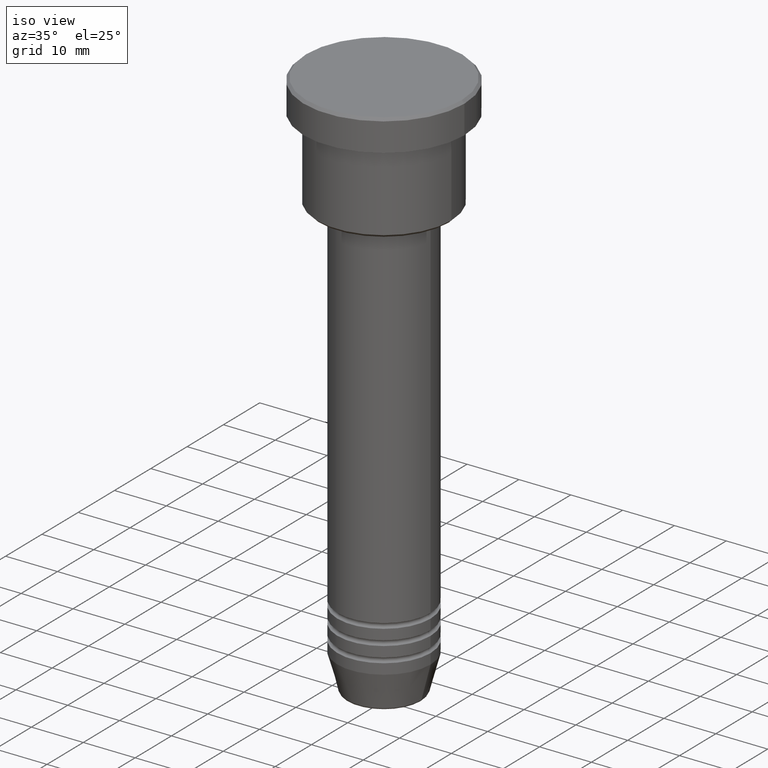
[diagram: clean part render]
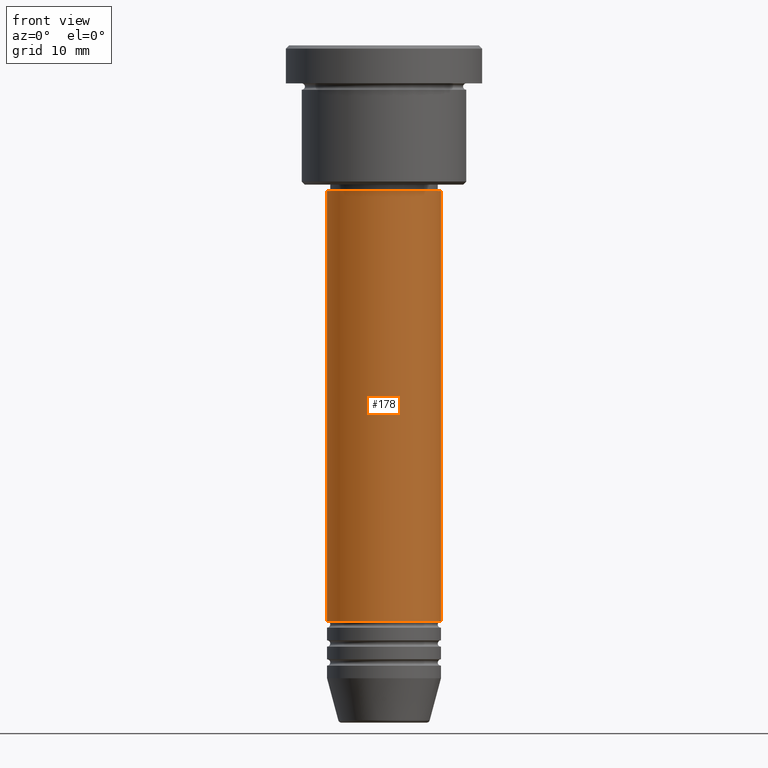
[diagram: tour spotlight — one face highlighted and labeled with its STEP entity id]
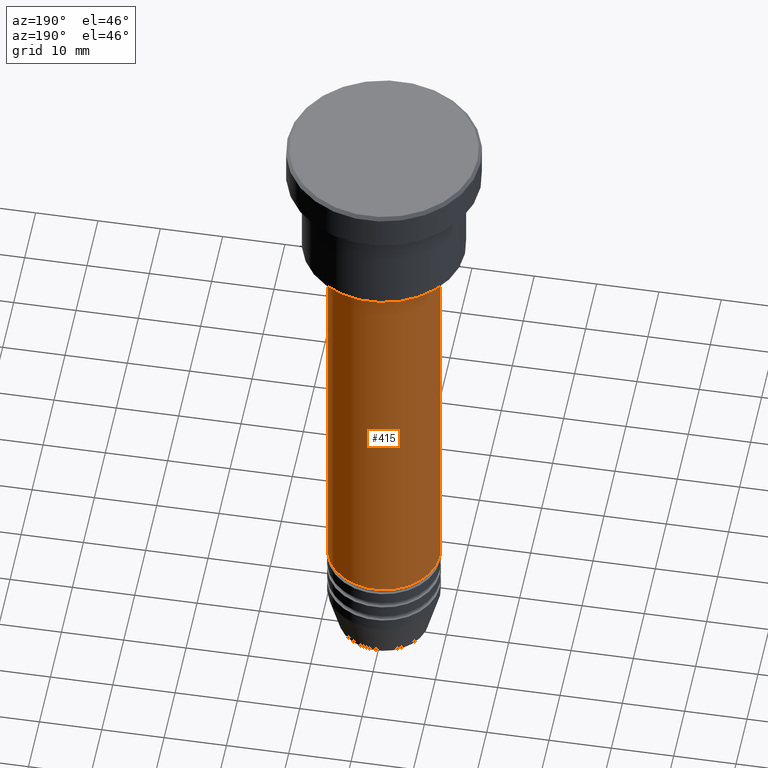
[diagram: tour spotlight — one face highlighted and labeled with its STEP entity id]
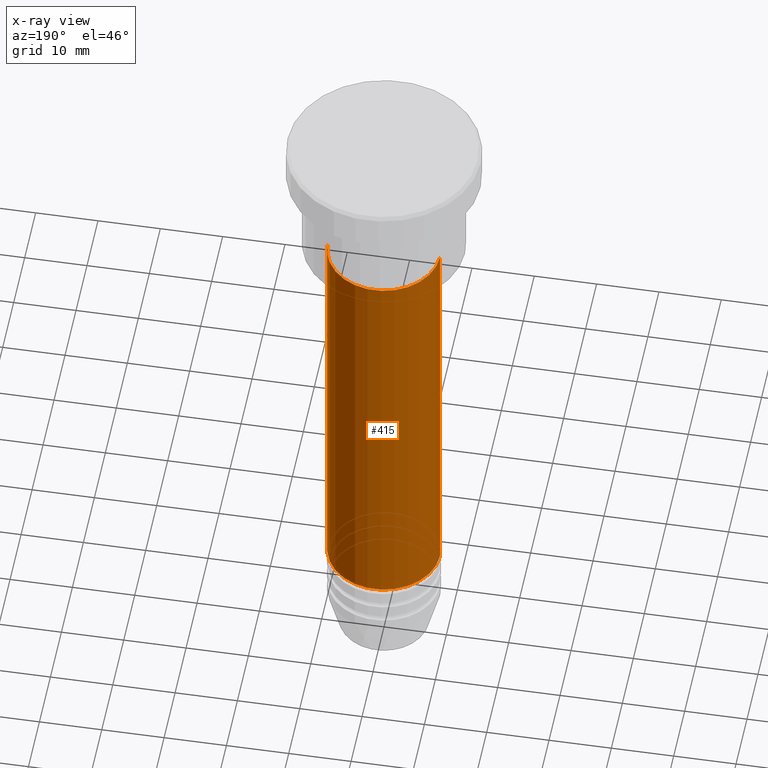
[diagram: x-ray of the same camera — body ghosted, this tour face saturated]
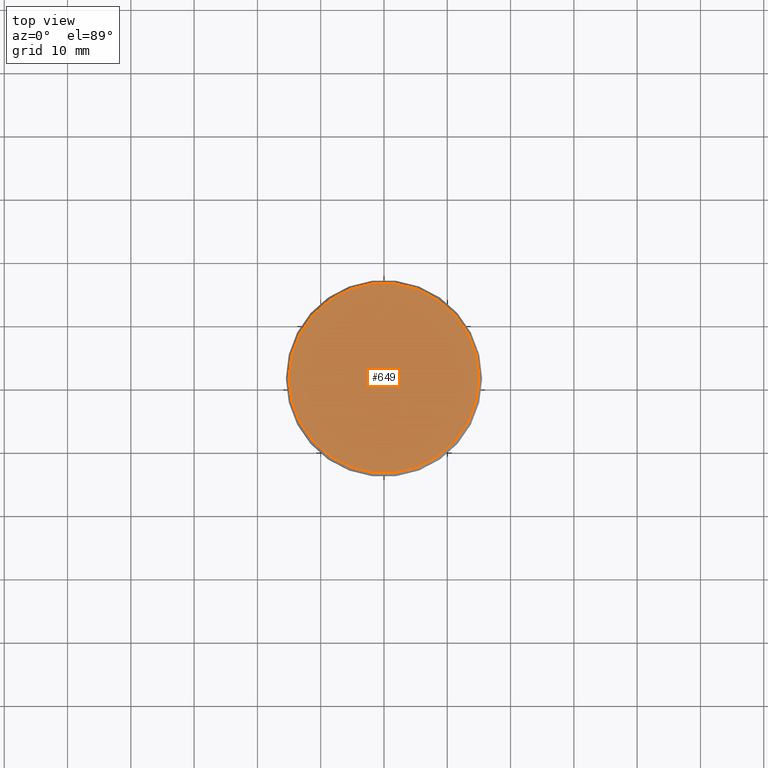
[diagram: tour spotlight — one face highlighted and labeled with its STEP entity id]
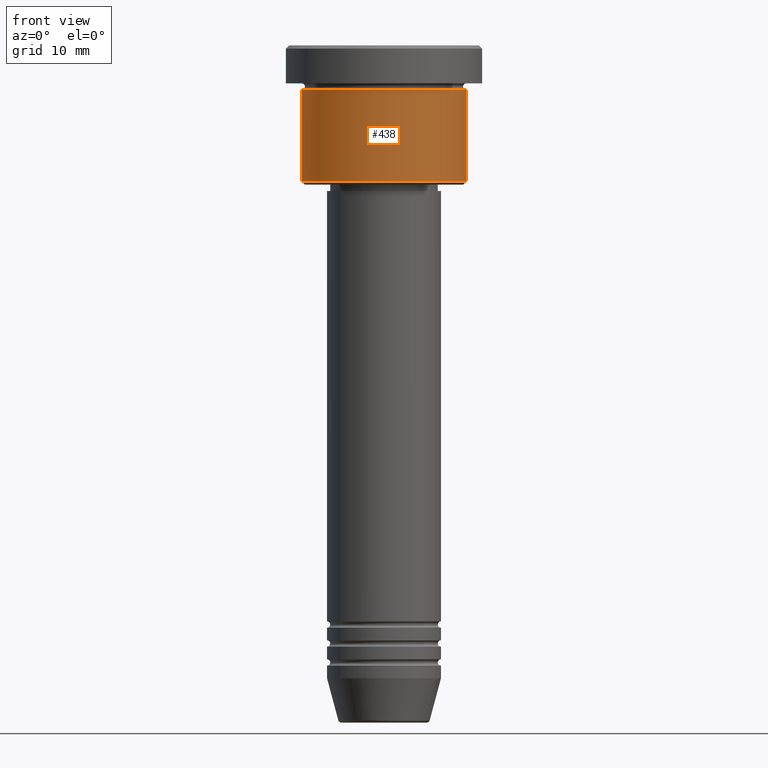
[diagram: tour spotlight — one face highlighted and labeled with its STEP entity id]
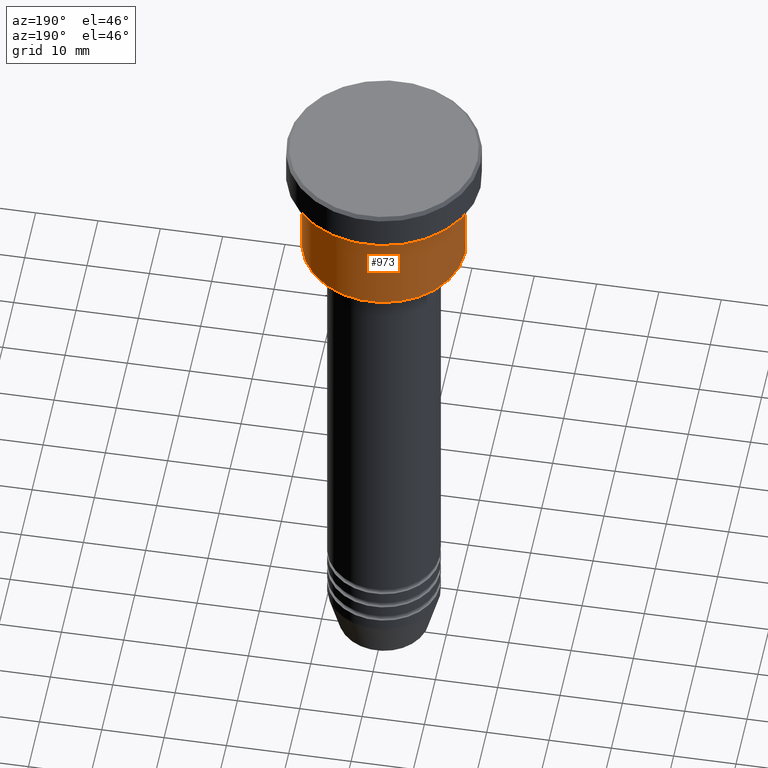
[diagram: tour spotlight — one face highlighted and labeled with its STEP entity id]
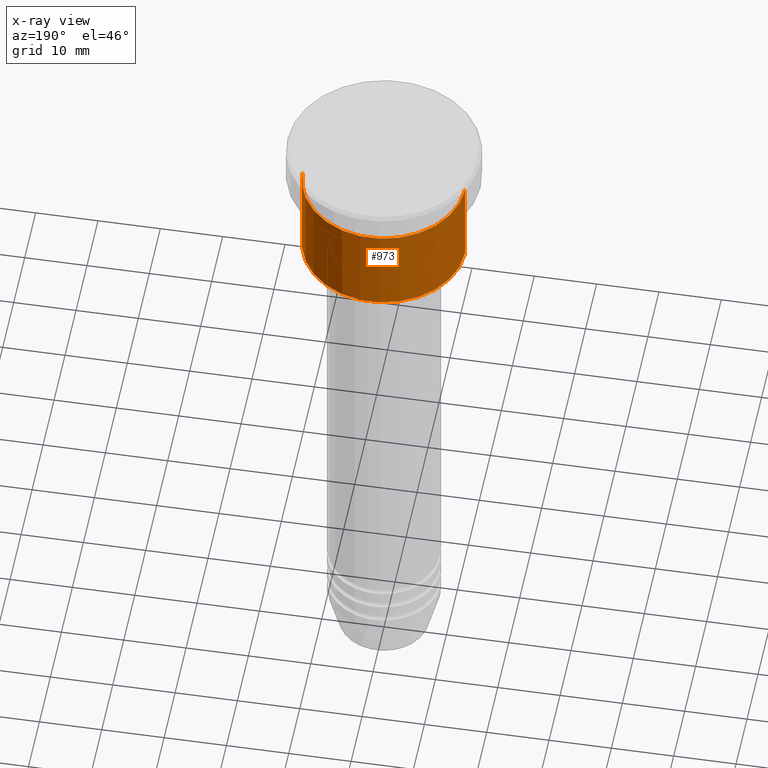
[diagram: x-ray of the same camera — body ghosted, this tour face saturated]
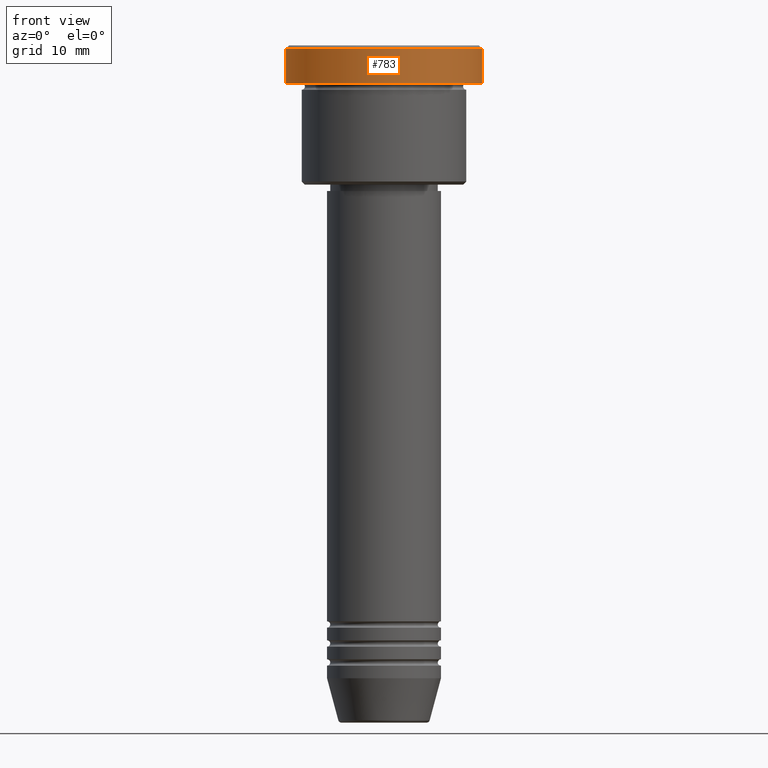
[diagram: tour spotlight — one face highlighted and labeled with its STEP entity id]
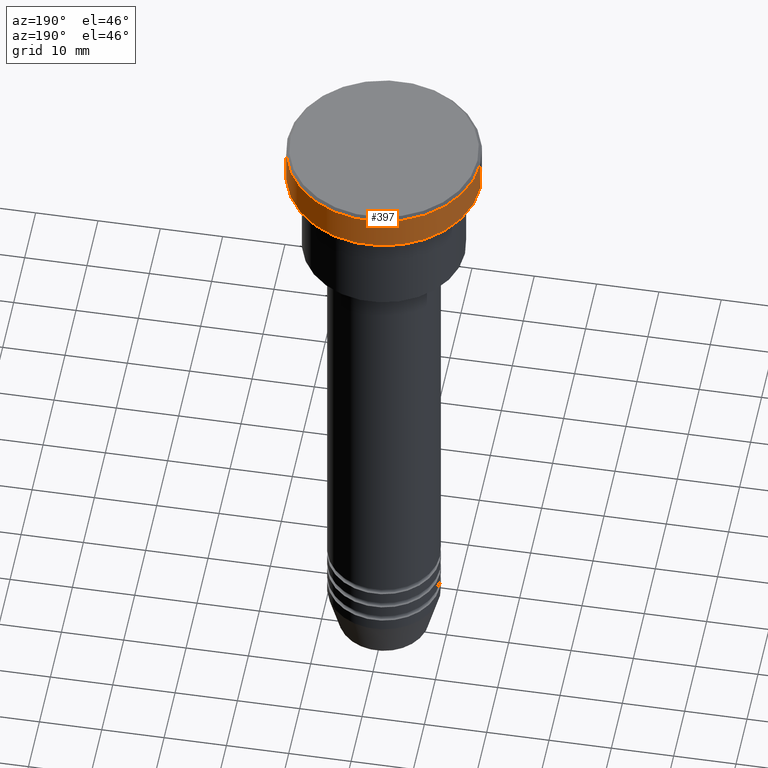
[diagram: tour spotlight — one face highlighted and labeled with its STEP entity id]
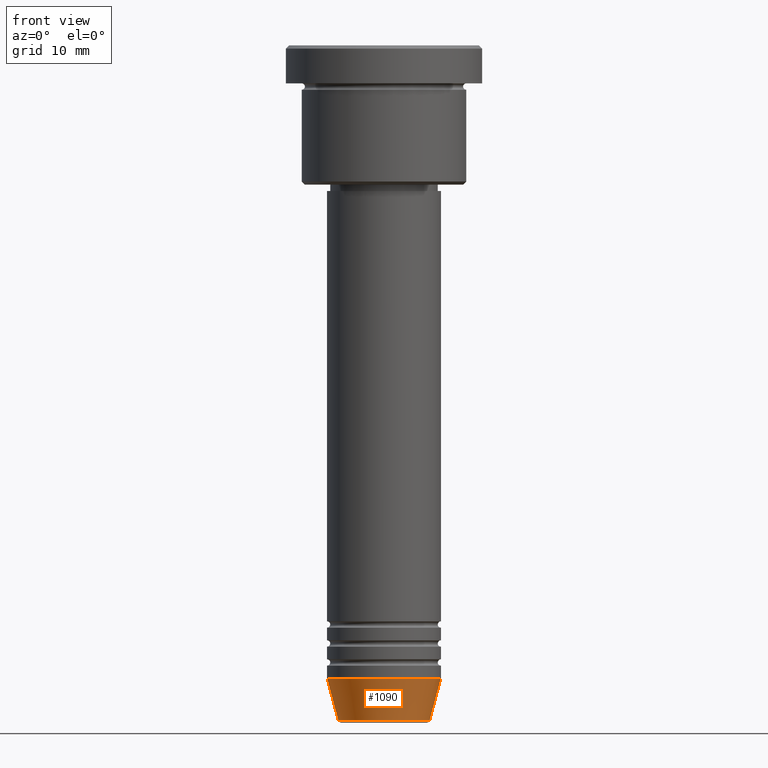
[diagram: tour spotlight — one face highlighted and labeled with its STEP entity id]
A machine part: a face-by-face anatomy tour. The part has 43 B-rep faces; the first image is the clean iso view, then the 8 largest visible faces are spotlighted one at a time (largest first), each with its STEP entity span.

Face 1 — front view, entity #178. In plain terms, the highlighted cylindrical surface (partial cylindrical patch) has radius 9 mm, axis along (-0, -0, 1).
Definition (entity closure, byte-faithful):
#13 = CARTESIAN_POINT ( 'NONE',  ( 9.000000000000000000, 0.000000000000000000, -23.00000000000000000 ) ) ;
#126 = DIRECTION ( 'NONE',  ( 1.000000000000000000, 0.000000000000000000, 0.000000000000000000 ) ) ;
#128 = AXIS2_PLACEMENT_3D ( 'NONE', #413, #953, #883 ) ;
#178 = ADVANCED_FACE ( 'NONE', ( #327 ), #465, .T. ) ;
#216 = VERTEX_POINT ( 'NONE', #13 ) ;
#220 = DIRECTION ( 'NONE',  ( -0.000000000000000000, -0.000000000000000000, 1.000000000000000000 ) ) ;
#242 = EDGE_CURVE ( 'NONE', #1002, #216, #709, .T. ) ;
#258 = VECTOR ( 'NONE', #815, 1000.000000000000000 ) ;
#279 = AXIS2_PLACEMENT_3D ( 'NONE', #1007, #639, #477 ) ;
#323 = CARTESIAN_POINT ( 'NONE',  ( -9.000000000000000000, 1.102182119232617714E-15, -23.00000000000000000 ) ) ;
#327 = FACE_OUTER_BOUND ( 'NONE', #344, .T. ) ;
#344 = EDGE_LOOP ( 'NONE', ( #1069, #535, #739, #663 ) ) ;
#346 = CARTESIAN_POINT ( 'NONE',  ( 9.000000000000000000, 0.000000000000000000, 0.000000000000000000 ) ) ;
#413 = CARTESIAN_POINT ( 'NONE',  ( 0.000000000000000000, 0.000000000000000000, -23.00000000000000000 ) ) ;
#431 = VERTEX_POINT ( 'NONE', #1130 ) ;
#440 = LINE ( 'NONE', #346, #258 ) ;
#456 = LINE ( 'NONE', #1127, #585 ) ;
#465 = CYLINDRICAL_SURFACE ( 'NONE', #279, 9.000000000000000000 ) ;
#477 = DIRECTION ( 'NONE',  ( 1.000000000000000000, 0.000000000000000000, 0.000000000000000000 ) ) ;
#478 = AXIS2_PLACEMENT_3D ( 'NONE', #1144, #220, #126 ) ;
#535 = ORIENTED_EDGE ( 'NONE', *, *, #1159, .T. ) ;
#565 = EDGE_CURVE ( 'NONE', #431, #216, #440, .T. ) ;
#585 = VECTOR ( 'NONE', #835, 1000.000000000000000 ) ;
#639 = DIRECTION ( 'NONE',  ( -0.000000000000000000, -0.000000000000000000, 1.000000000000000000 ) ) ;
#663 = ORIENTED_EDGE ( 'NONE', *, *, #242, .F. ) ;
#709 = CIRCLE ( 'NONE', #128, 9.000000000000000000 ) ;
#739 = ORIENTED_EDGE ( 'NONE', *, *, #565, .T. ) ;
#815 = DIRECTION ( 'NONE',  ( -0.000000000000000000, -0.000000000000000000, 1.000000000000000000 ) ) ;
#835 = DIRECTION ( 'NONE',  ( -0.000000000000000000, -0.000000000000000000, 1.000000000000000000 ) ) ;
#854 = EDGE_CURVE ( 'NONE', #1138, #1002, #456, .T. ) ;
#883 = DIRECTION ( 'NONE',  ( 1.000000000000000000, 0.000000000000000000, 0.000000000000000000 ) ) ;
#953 = DIRECTION ( 'NONE',  ( -0.000000000000000000, -0.000000000000000000, 1.000000000000000000 ) ) ;
#1002 = VERTEX_POINT ( 'NONE', #323 ) ;
#1007 = CARTESIAN_POINT ( 'NONE',  ( 0.000000000000000000, 0.000000000000000000, 0.000000000000000000 ) ) ;
#1037 = CIRCLE ( 'NONE', #478, 9.000000000000000000 ) ;
#1069 = ORIENTED_EDGE ( 'NONE', *, *, #854, .F. ) ;
#1120 = CARTESIAN_POINT ( 'NONE',  ( -9.000000000000000000, 1.102182119232617714E-15, -90.99999999999997158 ) ) ;
#1127 = CARTESIAN_POINT ( 'NONE',  ( -9.000000000000000000, 1.102182119232617714E-15, 0.000000000000000000 ) ) ;
#1130 = CARTESIAN_POINT ( 'NONE',  ( 9.000000000000000000, 0.000000000000000000, -90.99999999999997158 ) ) ;
#1138 = VERTEX_POINT ( 'NONE', #1120 ) ;
#1144 = CARTESIAN_POINT ( 'NONE',  ( 0.000000000000000000, 0.000000000000000000, -90.99999999999997158 ) ) ;
#1159 = EDGE_CURVE ( 'NONE', #1138, #431, #1037, .T. ) ;

Face 2 — auxiliary view, entity #415. An x-ray twin of the same camera follows (body ghosted, this face saturated) — the face is partly hidden behind the body. In plain terms, the highlighted cylindrical surface (partial cylindrical patch) has radius 9 mm, axis along (-0, -0, 1).
Definition (entity closure, byte-faithful):
#13 = CARTESIAN_POINT ( 'NONE',  ( 9.000000000000000000, 0.000000000000000000, -23.00000000000000000 ) ) ;
#41 = DIRECTION ( 'NONE',  ( 1.000000000000000000, 0.000000000000000000, 0.000000000000000000 ) ) ;
#64 = EDGE_CURVE ( 'NONE', #216, #1002, #493, .T. ) ;
#105 = CARTESIAN_POINT ( 'NONE',  ( 0.000000000000000000, 0.000000000000000000, 0.000000000000000000 ) ) ;
#134 = FACE_OUTER_BOUND ( 'NONE', #931, .T. ) ;
#155 = EDGE_CURVE ( 'NONE', #431, #1138, #165, .T. ) ;
#165 = CIRCLE ( 'NONE', #1113, 9.000000000000000000 ) ;
#216 = VERTEX_POINT ( 'NONE', #13 ) ;
#233 = DIRECTION ( 'NONE',  ( -0.000000000000000000, -0.000000000000000000, 1.000000000000000000 ) ) ;
#257 = ORIENTED_EDGE ( 'NONE', *, *, #155, .T. ) ;
#258 = VECTOR ( 'NONE', #815, 1000.000000000000000 ) ;
#318 = CARTESIAN_POINT ( 'NONE',  ( 0.000000000000000000, 0.000000000000000000, -23.00000000000000000 ) ) ;
#323 = CARTESIAN_POINT ( 'NONE',  ( -9.000000000000000000, 1.102182119232617714E-15, -23.00000000000000000 ) ) ;
#346 = CARTESIAN_POINT ( 'NONE',  ( 9.000000000000000000, 0.000000000000000000, 0.000000000000000000 ) ) ;
#378 = CYLINDRICAL_SURFACE ( 'NONE', #1055, 9.000000000000000000 ) ;
#415 = ADVANCED_FACE ( 'NONE', ( #134 ), #378, .T. ) ;
#421 = DIRECTION ( 'NONE',  ( -0.000000000000000000, -0.000000000000000000, 1.000000000000000000 ) ) ;
#431 = VERTEX_POINT ( 'NONE', #1130 ) ;
#440 = LINE ( 'NONE', #346, #258 ) ;
#456 = LINE ( 'NONE', #1127, #585 ) ;
#493 = CIRCLE ( 'NONE', #939, 9.000000000000000000 ) ;
#565 = EDGE_CURVE ( 'NONE', #431, #216, #440, .T. ) ;
#581 = DIRECTION ( 'NONE',  ( 1.000000000000000000, 0.000000000000000000, 0.000000000000000000 ) ) ;
#585 = VECTOR ( 'NONE', #835, 1000.000000000000000 ) ;
#595 = CARTESIAN_POINT ( 'NONE',  ( 0.000000000000000000, 0.000000000000000000, -90.99999999999997158 ) ) ;
#701 = ORIENTED_EDGE ( 'NONE', *, *, #64, .F. ) ;
#787 = ORIENTED_EDGE ( 'NONE', *, *, #565, .F. ) ;
#815 = DIRECTION ( 'NONE',  ( -0.000000000000000000, -0.000000000000000000, 1.000000000000000000 ) ) ;
#835 = DIRECTION ( 'NONE',  ( -0.000000000000000000, -0.000000000000000000, 1.000000000000000000 ) ) ;
#854 = EDGE_CURVE ( 'NONE', #1138, #1002, #456, .T. ) ;
#859 = DIRECTION ( 'NONE',  ( 1.000000000000000000, 0.000000000000000000, 0.000000000000000000 ) ) ;
#931 = EDGE_LOOP ( 'NONE', ( #257, #1050, #701, #787 ) ) ;
#939 = AXIS2_PLACEMENT_3D ( 'NONE', #318, #421, #859 ) ;
#1002 = VERTEX_POINT ( 'NONE', #323 ) ;
#1030 = DIRECTION ( 'NONE',  ( -0.000000000000000000, -0.000000000000000000, 1.000000000000000000 ) ) ;
#1050 = ORIENTED_EDGE ( 'NONE', *, *, #854, .T. ) ;
#1055 = AXIS2_PLACEMENT_3D ( 'NONE', #105, #1030, #581 ) ;
#1113 = AXIS2_PLACEMENT_3D ( 'NONE', #595, #233, #41 ) ;
#1120 = CARTESIAN_POINT ( 'NONE',  ( -9.000000000000000000, 1.102182119232617714E-15, -90.99999999999997158 ) ) ;
#1127 = CARTESIAN_POINT ( 'NONE',  ( -9.000000000000000000, 1.102182119232617714E-15, 0.000000000000000000 ) ) ;
#1130 = CARTESIAN_POINT ( 'NONE',  ( 9.000000000000000000, 0.000000000000000000, -90.99999999999997158 ) ) ;
#1138 = VERTEX_POINT ( 'NONE', #1120 ) ;

Face 3 — top view, entity #649. In plain terms, the highlighted planar face has unit normal (0, -0, 1).
Definition (entity closure, byte-faithful):
#1 = DIRECTION ( 'NONE',  ( 1.000000000000000000, 0.000000000000000000, 0.000000000000000000 ) ) ;
#9 = DIRECTION ( 'NONE',  ( 0.000000000000000000, -0.000000000000000000, 1.000000000000000000 ) ) ;
#98 = PLANE ( 'NONE',  #534 ) ;
#185 = DIRECTION ( 'NONE',  ( -0.000000000000000000, -0.000000000000000000, 1.000000000000000000 ) ) ;
#200 = DIRECTION ( 'NONE',  ( 1.000000000000000000, 0.000000000000000000, 0.000000000000000000 ) ) ;
#230 = VERTEX_POINT ( 'NONE', #312 ) ;
#253 = CARTESIAN_POINT ( 'NONE',  ( 0.000000000000000000, 0.000000000000000000, 0.000000000000000000 ) ) ;
#285 = CIRCLE ( 'NONE', #1041, 15.00000000000002665 ) ;
#289 = CARTESIAN_POINT ( 'NONE',  ( -15.00000000000002665, 0.000000000000000000, 0.000000000000000000 ) ) ;
#312 = CARTESIAN_POINT ( 'NONE',  ( 15.00000000000002665, 1.867586368699715348E-15, 0.000000000000000000 ) ) ;
#353 = AXIS2_PLACEMENT_3D ( 'NONE', #373, #738, #200 ) ;
#361 = ORIENTED_EDGE ( 'NONE', *, *, #689, .T. ) ;
#373 = CARTESIAN_POINT ( 'NONE',  ( 0.000000000000000000, 0.000000000000000000, 0.000000000000000000 ) ) ;
#534 = AXIS2_PLACEMENT_3D ( 'NONE', #253, #9, #1011 ) ;
#649 = ADVANCED_FACE ( 'NONE', ( #703 ), #98, .T. ) ;
#654 = EDGE_CURVE ( 'NONE', #658, #230, #678, .T. ) ;
#658 = VERTEX_POINT ( 'NONE', #289 ) ;
#678 = CIRCLE ( 'NONE', #353, 15.00000000000002665 ) ;
#689 = EDGE_CURVE ( 'NONE', #230, #658, #285, .T. ) ;
#703 = FACE_OUTER_BOUND ( 'NONE', #985, .T. ) ;
#738 = DIRECTION ( 'NONE',  ( -0.000000000000000000, -0.000000000000000000, 1.000000000000000000 ) ) ;
#897 = ORIENTED_EDGE ( 'NONE', *, *, #654, .T. ) ;
#985 = EDGE_LOOP ( 'NONE', ( #897, #361 ) ) ;
#1011 = DIRECTION ( 'NONE',  ( 1.000000000000000000, 0.000000000000000000, 0.000000000000000000 ) ) ;
#1041 = AXIS2_PLACEMENT_3D ( 'NONE', #1166, #185, #1 ) ;
#1166 = CARTESIAN_POINT ( 'NONE',  ( 0.000000000000000000, 0.000000000000000000, 0.000000000000000000 ) ) ;

Face 4 — front view, entity #438. In plain terms, the highlighted cylindrical surface (partial cylindrical patch) has radius 13 mm, axis along (-0, -0, 1).
Definition (entity closure, byte-faithful):
#56 = CYLINDRICAL_SURFACE ( 'NONE', #1155, 13.00000000000000000 ) ;
#63 = DIRECTION ( 'NONE',  ( -0.000000000000000000, -0.000000000000000000, 1.000000000000000000 ) ) ;
#65 = CARTESIAN_POINT ( 'NONE',  ( -13.00000000000000000, 1.592040838891559095E-15, 0.000000000000000000 ) ) ;
#78 = EDGE_LOOP ( 'NONE', ( #351, #879, #638, #166 ) ) ;
#102 = EDGE_CURVE ( 'NONE', #454, #377, #1146, .T. ) ;
#146 = DIRECTION ( 'NONE',  ( 1.000000000000000000, 0.000000000000000000, 0.000000000000000000 ) ) ;
#166 = ORIENTED_EDGE ( 'NONE', *, *, #710, .F. ) ;
#259 = AXIS2_PLACEMENT_3D ( 'NONE', #1172, #354, #270 ) ;
#270 = DIRECTION ( 'NONE',  ( 1.000000000000000000, 0.000000000000000000, 0.000000000000000000 ) ) ;
#339 = VERTEX_POINT ( 'NONE', #807 ) ;
#351 = ORIENTED_EDGE ( 'NONE', *, *, #102, .F. ) ;
#354 = DIRECTION ( 'NONE',  ( -0.000000000000000000, -0.000000000000000000, 1.000000000000000000 ) ) ;
#377 = VERTEX_POINT ( 'NONE', #727 ) ;
#401 = CARTESIAN_POINT ( 'NONE',  ( 13.00000000000000000, 0.000000000000000000, 0.000000000000000000 ) ) ;
#412 = CARTESIAN_POINT ( 'NONE',  ( 0.000000000000000000, 0.000000000000000000, 0.000000000000000000 ) ) ;
#420 = LINE ( 'NONE', #401, #1042 ) ;
#438 = ADVANCED_FACE ( 'NONE', ( #861 ), #56, .T. ) ;
#454 = VERTEX_POINT ( 'NONE', #1148 ) ;
#545 = EDGE_CURVE ( 'NONE', #454, #339, #886, .T. ) ;
#549 = AXIS2_PLACEMENT_3D ( 'NONE', #700, #63, #966 ) ;
#638 = ORIENTED_EDGE ( 'NONE', *, *, #1036, .T. ) ;
#700 = CARTESIAN_POINT ( 'NONE',  ( 0.000000000000000000, 0.000000000000000000, -21.49999999999998934 ) ) ;
#710 = EDGE_CURVE ( 'NONE', #377, #725, #1115, .T. ) ;
#725 = VERTEX_POINT ( 'NONE', #751 ) ;
#727 = CARTESIAN_POINT ( 'NONE',  ( -13.00000000000000000, 1.592040838891559095E-15, -6.999999999999995559 ) ) ;
#751 = CARTESIAN_POINT ( 'NONE',  ( 13.00000000000000000, 0.000000000000000000, -6.999999999999995559 ) ) ;
#756 = DIRECTION ( 'NONE',  ( -0.000000000000000000, -0.000000000000000000, 1.000000000000000000 ) ) ;
#773 = DIRECTION ( 'NONE',  ( -0.000000000000000000, -0.000000000000000000, 1.000000000000000000 ) ) ;
#782 = DIRECTION ( 'NONE',  ( -0.000000000000000000, -0.000000000000000000, 1.000000000000000000 ) ) ;
#807 = CARTESIAN_POINT ( 'NONE',  ( 13.00000000000000000, 0.000000000000000000, -21.49999999999998934 ) ) ;
#861 = FACE_OUTER_BOUND ( 'NONE', #78, .T. ) ;
#879 = ORIENTED_EDGE ( 'NONE', *, *, #545, .T. ) ;
#886 = CIRCLE ( 'NONE', #549, 13.00000000000000000 ) ;
#966 = DIRECTION ( 'NONE',  ( -1.000000000000000000, 0.000000000000000000, 0.000000000000000000 ) ) ;
#1036 = EDGE_CURVE ( 'NONE', #339, #725, #420, .T. ) ;
#1042 = VECTOR ( 'NONE', #782, 1000.000000000000000 ) ;
#1071 = VECTOR ( 'NONE', #756, 1000.000000000000000 ) ;
#1115 = CIRCLE ( 'NONE', #259, 13.00000000000000000 ) ;
#1146 = LINE ( 'NONE', #65, #1071 ) ;
#1148 = CARTESIAN_POINT ( 'NONE',  ( -13.00000000000000000, 1.592040838891559095E-15, -21.49999999999998934 ) ) ;
#1155 = AXIS2_PLACEMENT_3D ( 'NONE', #412, #773, #146 ) ;
#1172 = CARTESIAN_POINT ( 'NONE',  ( 0.000000000000000000, 0.000000000000000000, -6.999999999999995559 ) ) ;

Face 5 — auxiliary view, entity #973. An x-ray twin of the same camera follows (body ghosted, this face saturated) — the face is partly hidden behind the body. In plain terms, the highlighted cylindrical surface (partial cylindrical patch) has radius 13 mm, axis along (-0, -0, 1).
Definition (entity closure, byte-faithful):
#65 = CARTESIAN_POINT ( 'NONE',  ( -13.00000000000000000, 1.592040838891559095E-15, 0.000000000000000000 ) ) ;
#82 = EDGE_LOOP ( 'NONE', ( #247, #707, #310, #204 ) ) ;
#102 = EDGE_CURVE ( 'NONE', #454, #377, #1146, .T. ) ;
#204 = ORIENTED_EDGE ( 'NONE', *, *, #1036, .F. ) ;
#247 = ORIENTED_EDGE ( 'NONE', *, *, #303, .T. ) ;
#260 = CARTESIAN_POINT ( 'NONE',  ( 0.000000000000000000, 0.000000000000000000, -21.49999999999998934 ) ) ;
#263 = AXIS2_PLACEMENT_3D ( 'NONE', #1128, #956, #409 ) ;
#303 = EDGE_CURVE ( 'NONE', #339, #454, #1093, .T. ) ;
#310 = ORIENTED_EDGE ( 'NONE', *, *, #1182, .F. ) ;
#339 = VERTEX_POINT ( 'NONE', #807 ) ;
#377 = VERTEX_POINT ( 'NONE', #727 ) ;
#381 = DIRECTION ( 'NONE',  ( -0.000000000000000000, -0.000000000000000000, 1.000000000000000000 ) ) ;
#401 = CARTESIAN_POINT ( 'NONE',  ( 13.00000000000000000, 0.000000000000000000, 0.000000000000000000 ) ) ;
#409 = DIRECTION ( 'NONE',  ( 1.000000000000000000, 0.000000000000000000, 0.000000000000000000 ) ) ;
#420 = LINE ( 'NONE', #401, #1042 ) ;
#452 = DIRECTION ( 'NONE',  ( -0.000000000000000000, -0.000000000000000000, 1.000000000000000000 ) ) ;
#454 = VERTEX_POINT ( 'NONE', #1148 ) ;
#509 = CIRCLE ( 'NONE', #770, 13.00000000000000000 ) ;
#537 = CYLINDRICAL_SURFACE ( 'NONE', #263, 13.00000000000000000 ) ;
#573 = DIRECTION ( 'NONE',  ( 1.000000000000000000, 0.000000000000000000, 0.000000000000000000 ) ) ;
#626 = DIRECTION ( 'NONE',  ( -1.000000000000000000, 0.000000000000000000, 0.000000000000000000 ) ) ;
#692 = AXIS2_PLACEMENT_3D ( 'NONE', #260, #452, #626 ) ;
#707 = ORIENTED_EDGE ( 'NONE', *, *, #102, .T. ) ;
#725 = VERTEX_POINT ( 'NONE', #751 ) ;
#727 = CARTESIAN_POINT ( 'NONE',  ( -13.00000000000000000, 1.592040838891559095E-15, -6.999999999999995559 ) ) ;
#751 = CARTESIAN_POINT ( 'NONE',  ( 13.00000000000000000, 0.000000000000000000, -6.999999999999995559 ) ) ;
#756 = DIRECTION ( 'NONE',  ( -0.000000000000000000, -0.000000000000000000, 1.000000000000000000 ) ) ;
#770 = AXIS2_PLACEMENT_3D ( 'NONE', #929, #381, #573 ) ;
#782 = DIRECTION ( 'NONE',  ( -0.000000000000000000, -0.000000000000000000, 1.000000000000000000 ) ) ;
#807 = CARTESIAN_POINT ( 'NONE',  ( 13.00000000000000000, 0.000000000000000000, -21.49999999999998934 ) ) ;
#929 = CARTESIAN_POINT ( 'NONE',  ( 0.000000000000000000, 0.000000000000000000, -6.999999999999995559 ) ) ;
#956 = DIRECTION ( 'NONE',  ( -0.000000000000000000, -0.000000000000000000, 1.000000000000000000 ) ) ;
#973 = ADVANCED_FACE ( 'NONE', ( #976 ), #537, .T. ) ;
#976 = FACE_OUTER_BOUND ( 'NONE', #82, .T. ) ;
#1036 = EDGE_CURVE ( 'NONE', #339, #725, #420, .T. ) ;
#1042 = VECTOR ( 'NONE', #782, 1000.000000000000000 ) ;
#1071 = VECTOR ( 'NONE', #756, 1000.000000000000000 ) ;
#1093 = CIRCLE ( 'NONE', #692, 13.00000000000000000 ) ;
#1128 = CARTESIAN_POINT ( 'NONE',  ( 0.000000000000000000, 0.000000000000000000, 0.000000000000000000 ) ) ;
#1146 = LINE ( 'NONE', #65, #1071 ) ;
#1148 = CARTESIAN_POINT ( 'NONE',  ( -13.00000000000000000, 1.592040838891559095E-15, -21.49999999999998934 ) ) ;
#1182 = EDGE_CURVE ( 'NONE', #725, #377, #509, .T. ) ;

Face 6 — front view, entity #783. In plain terms, the highlighted cylindrical surface (partial cylindrical patch) has radius 15.5 mm, axis along (-0, -0, 1).
Definition (entity closure, byte-faithful):
#21 = VERTEX_POINT ( 'NONE', #103 ) ;
#80 = CARTESIAN_POINT ( 'NONE',  ( -15.50000000000000000, 1.898202538678397557E-15, 0.000000000000000000 ) ) ;
#103 = CARTESIAN_POINT ( 'NONE',  ( -15.50000000000000000, 1.898202538678397557E-15, -5.999999999999995559 ) ) ;
#145 = CIRCLE ( 'NONE', #1058, 15.50000000000000000 ) ;
#157 = DIRECTION ( 'NONE',  ( 1.000000000000000000, 0.000000000000000000, 0.000000000000000000 ) ) ;
#184 = VECTOR ( 'NONE', #1079, 1000.000000000000000 ) ;
#194 = CARTESIAN_POINT ( 'NONE',  ( 0.000000000000000000, 0.000000000000000000, -0.4999999999999709677 ) ) ;
#197 = EDGE_CURVE ( 'NONE', #21, #840, #999, .T. ) ;
#198 = ORIENTED_EDGE ( 'NONE', *, *, #311, .F. ) ;
#292 = DIRECTION ( 'NONE',  ( 1.000000000000000000, 0.000000000000000000, 0.000000000000000000 ) ) ;
#311 = EDGE_CURVE ( 'NONE', #21, #648, #458, .T. ) ;
#340 = ORIENTED_EDGE ( 'NONE', *, *, #197, .T. ) ;
#358 = CARTESIAN_POINT ( 'NONE',  ( 15.50000000000000000, 0.000000000000000000, 0.000000000000000000 ) ) ;
#368 = DIRECTION ( 'NONE',  ( -0.000000000000000000, -0.000000000000000000, 1.000000000000000000 ) ) ;
#407 = AXIS2_PLACEMENT_3D ( 'NONE', #1103, #1081, #292 ) ;
#458 = LINE ( 'NONE', #80, #184 ) ;
#557 = DIRECTION ( 'NONE',  ( 0.000000000000000000, 0.000000000000000000, -1.000000000000000000 ) ) ;
#567 = AXIS2_PLACEMENT_3D ( 'NONE', #968, #368, #157 ) ;
#634 = DIRECTION ( 'NONE',  ( -0.000000000000000000, -0.000000000000000000, 1.000000000000000000 ) ) ;
#636 = EDGE_CURVE ( 'NONE', #715, #648, #145, .T. ) ;
#648 = VERTEX_POINT ( 'NONE', #913 ) ;
#715 = VERTEX_POINT ( 'NONE', #1027 ) ;
#720 = CYLINDRICAL_SURFACE ( 'NONE', #407, 15.50000000000000000 ) ;
#731 = CARTESIAN_POINT ( 'NONE',  ( 15.50000000000000000, 0.000000000000000000, -5.999999999999995559 ) ) ;
#783 = ADVANCED_FACE ( 'NONE', ( #1008 ), #720, .T. ) ;
#819 = EDGE_CURVE ( 'NONE', #840, #715, #1177, .T. ) ;
#840 = VERTEX_POINT ( 'NONE', #731 ) ;
#892 = DIRECTION ( 'NONE',  ( 1.000000000000000000, 0.000000000000000000, 0.000000000000000000 ) ) ;
#901 = ORIENTED_EDGE ( 'NONE', *, *, #636, .T. ) ;
#913 = CARTESIAN_POINT ( 'NONE',  ( -15.50000000000000000, 1.898202538678397557E-15, -0.4999999999999709677 ) ) ;
#961 = VECTOR ( 'NONE', #634, 1000.000000000000000 ) ;
#968 = CARTESIAN_POINT ( 'NONE',  ( 0.000000000000000000, 0.000000000000000000, -5.999999999999995559 ) ) ;
#999 = CIRCLE ( 'NONE', #567, 15.50000000000000000 ) ;
#1008 = FACE_OUTER_BOUND ( 'NONE', #1109, .T. ) ;
#1027 = CARTESIAN_POINT ( 'NONE',  ( 15.50000000000000000, 0.000000000000000000, -0.4999999999999709677 ) ) ;
#1058 = AXIS2_PLACEMENT_3D ( 'NONE', #194, #557, #892 ) ;
#1060 = ORIENTED_EDGE ( 'NONE', *, *, #819, .T. ) ;
#1079 = DIRECTION ( 'NONE',  ( -0.000000000000000000, -0.000000000000000000, 1.000000000000000000 ) ) ;
#1081 = DIRECTION ( 'NONE',  ( -0.000000000000000000, -0.000000000000000000, 1.000000000000000000 ) ) ;
#1103 = CARTESIAN_POINT ( 'NONE',  ( 0.000000000000000000, 0.000000000000000000, 0.000000000000000000 ) ) ;
#1109 = EDGE_LOOP ( 'NONE', ( #198, #340, #1060, #901 ) ) ;
#1177 = LINE ( 'NONE', #358, #961 ) ;

Face 7 — auxiliary view, entity #397. In plain terms, the highlighted cylindrical surface (partial cylindrical patch) has radius 15.5 mm, axis along (-0, -0, 1).
Definition (entity closure, byte-faithful):
#21 = VERTEX_POINT ( 'NONE', #103 ) ;
#79 = ORIENTED_EDGE ( 'NONE', *, *, #461, .T. ) ;
#80 = CARTESIAN_POINT ( 'NONE',  ( -15.50000000000000000, 1.898202538678397557E-15, 0.000000000000000000 ) ) ;
#103 = CARTESIAN_POINT ( 'NONE',  ( -15.50000000000000000, 1.898202538678397557E-15, -5.999999999999995559 ) ) ;
#124 = DIRECTION ( 'NONE',  ( -0.000000000000000000, -0.000000000000000000, 1.000000000000000000 ) ) ;
#184 = VECTOR ( 'NONE', #1079, 1000.000000000000000 ) ;
#301 = AXIS2_PLACEMENT_3D ( 'NONE', #393, #124, #304 ) ;
#304 = DIRECTION ( 'NONE',  ( 1.000000000000000000, 0.000000000000000000, 0.000000000000000000 ) ) ;
#311 = EDGE_CURVE ( 'NONE', #21, #648, #458, .T. ) ;
#333 = AXIS2_PLACEMENT_3D ( 'NONE', #1179, #538, #637 ) ;
#358 = CARTESIAN_POINT ( 'NONE',  ( 15.50000000000000000, 0.000000000000000000, 0.000000000000000000 ) ) ;
#393 = CARTESIAN_POINT ( 'NONE',  ( 0.000000000000000000, 0.000000000000000000, 0.000000000000000000 ) ) ;
#397 = ADVANCED_FACE ( 'NONE', ( #589 ), #749, .T. ) ;
#411 = ORIENTED_EDGE ( 'NONE', *, *, #311, .T. ) ;
#458 = LINE ( 'NONE', #80, #184 ) ;
#461 = EDGE_CURVE ( 'NONE', #648, #715, #1023, .T. ) ;
#538 = DIRECTION ( 'NONE',  ( -0.000000000000000000, -0.000000000000000000, 1.000000000000000000 ) ) ;
#589 = FACE_OUTER_BOUND ( 'NONE', #798, .T. ) ;
#615 = EDGE_CURVE ( 'NONE', #840, #21, #846, .T. ) ;
#634 = DIRECTION ( 'NONE',  ( -0.000000000000000000, -0.000000000000000000, 1.000000000000000000 ) ) ;
#637 = DIRECTION ( 'NONE',  ( 1.000000000000000000, 0.000000000000000000, 0.000000000000000000 ) ) ;
#648 = VERTEX_POINT ( 'NONE', #913 ) ;
#715 = VERTEX_POINT ( 'NONE', #1027 ) ;
#731 = CARTESIAN_POINT ( 'NONE',  ( 15.50000000000000000, 0.000000000000000000, -5.999999999999995559 ) ) ;
#749 = CYLINDRICAL_SURFACE ( 'NONE', #301, 15.50000000000000000 ) ;
#798 = EDGE_LOOP ( 'NONE', ( #1086, #411, #79, #891 ) ) ;
#819 = EDGE_CURVE ( 'NONE', #840, #715, #1177, .T. ) ;
#840 = VERTEX_POINT ( 'NONE', #731 ) ;
#846 = CIRCLE ( 'NONE', #333, 15.50000000000000000 ) ;
#891 = ORIENTED_EDGE ( 'NONE', *, *, #819, .F. ) ;
#913 = CARTESIAN_POINT ( 'NONE',  ( -15.50000000000000000, 1.898202538678397557E-15, -0.4999999999999709677 ) ) ;
#919 = CARTESIAN_POINT ( 'NONE',  ( 0.000000000000000000, 0.000000000000000000, -0.4999999999999709677 ) ) ;
#959 = AXIS2_PLACEMENT_3D ( 'NONE', #919, #1126, #1052 ) ;
#961 = VECTOR ( 'NONE', #634, 1000.000000000000000 ) ;
#1023 = CIRCLE ( 'NONE', #959, 15.50000000000000000 ) ;
#1027 = CARTESIAN_POINT ( 'NONE',  ( 15.50000000000000000, 0.000000000000000000, -0.4999999999999709677 ) ) ;
#1052 = DIRECTION ( 'NONE',  ( 1.000000000000000000, 0.000000000000000000, 0.000000000000000000 ) ) ;
#1079 = DIRECTION ( 'NONE',  ( -0.000000000000000000, -0.000000000000000000, 1.000000000000000000 ) ) ;
#1086 = ORIENTED_EDGE ( 'NONE', *, *, #615, .T. ) ;
#1126 = DIRECTION ( 'NONE',  ( 0.000000000000000000, 0.000000000000000000, -1.000000000000000000 ) ) ;
#1177 = LINE ( 'NONE', #358, #961 ) ;
#1179 = CARTESIAN_POINT ( 'NONE',  ( 0.000000000000000000, 0.000000000000000000, -5.999999999999995559 ) ) ;

Face 8 — front view, entity #1090. In plain terms, the highlighted conical surface has half-angle 15 deg.
Definition (entity closure, byte-faithful):
#23 = CARTESIAN_POINT ( 'NONE',  ( -9.000000000000000000, 1.102182119232617714E-15, -100.0000000000000000 ) ) ;
#37 = VERTEX_POINT ( 'NONE', #391 ) ;
#38 = DIRECTION ( 'NONE',  ( 1.000000000000000000, 0.000000000000000000, 0.000000000000000000 ) ) ;
#40 = EDGE_CURVE ( 'NONE', #624, #874, #1121, .T. ) ;
#72 = AXIS2_PLACEMENT_3D ( 'NONE', #894, #479, #745 ) ;
#90 = VECTOR ( 'NONE', #916, 1000.000000000000000 ) ;
#92 = CARTESIAN_POINT ( 'NONE',  ( 0.000000000000000000, 0.000000000000000000, -100.0000000000000000 ) ) ;
#196 = ORIENTED_EDGE ( 'NONE', *, *, #307, .F. ) ;
#199 = DIRECTION ( 'NONE',  ( -0.000000000000000000, -0.000000000000000000, 1.000000000000000000 ) ) ;
#284 = CARTESIAN_POINT ( 'NONE',  ( -7.223655072137198374, 9.934123627281771026E-16, -106.6294095225512422 ) ) ;
#307 = EDGE_CURVE ( 'NONE', #874, #37, #530, .T. ) ;
#315 = AXIS2_PLACEMENT_3D ( 'NONE', #92, #199, #371 ) ;
#316 = CIRCLE ( 'NONE', #903, 7.223655072137197486 ) ;
#371 = DIRECTION ( 'NONE',  ( 1.000000000000000000, 0.000000000000000000, 0.000000000000000000 ) ) ;
#391 = CARTESIAN_POINT ( 'NONE',  ( 9.000000000000000000, 0.000000000000000000, -100.0000000000000000 ) ) ;
#455 = EDGE_CURVE ( 'NONE', #624, #895, #316, .T. ) ;
#479 = DIRECTION ( 'NONE',  ( -0.000000000000000000, -0.000000000000000000, 1.000000000000000000 ) ) ;
#530 = CIRCLE ( 'NONE', #315, 9.000000000000000000 ) ;
#561 = CARTESIAN_POINT ( 'NONE',  ( 9.000000000000000000, 0.000000000000000000, -100.0000000000000000 ) ) ;
#577 = DIRECTION ( 'NONE',  ( -0.000000000000000000, -0.000000000000000000, 1.000000000000000000 ) ) ;
#621 = VECTOR ( 'NONE', #741, 1000.000000000000000 ) ;
#624 = VERTEX_POINT ( 'NONE', #284 ) ;
#650 = LINE ( 'NONE', #561, #90 ) ;
#665 = EDGE_CURVE ( 'NONE', #895, #37, #650, .T. ) ;
#741 = DIRECTION ( 'NONE',  ( -0.2588190451025213501, 3.169619151431772337E-17, 0.9659258262890680902 ) ) ;
#745 = DIRECTION ( 'NONE',  ( 1.000000000000000000, 0.000000000000000000, 0.000000000000000000 ) ) ;
#795 = EDGE_LOOP ( 'NONE', ( #1061, #1180, #813, #196 ) ) ;
#813 = ORIENTED_EDGE ( 'NONE', *, *, #665, .T. ) ;
#874 = VERTEX_POINT ( 'NONE', #876 ) ;
#876 = CARTESIAN_POINT ( 'NONE',  ( -9.000000000000000000, 1.102182119232617714E-15, -100.0000000000000000 ) ) ;
#894 = CARTESIAN_POINT ( 'NONE',  ( 0.000000000000000000, 0.000000000000000000, -100.0000000000000000 ) ) ;
#895 = VERTEX_POINT ( 'NONE', #1168 ) ;
#903 = AXIS2_PLACEMENT_3D ( 'NONE', #1015, #577, #38 ) ;
#916 = DIRECTION ( 'NONE',  ( 0.2588190451025213501, 0.000000000000000000, 0.9659258262890680902 ) ) ;
#972 = FACE_OUTER_BOUND ( 'NONE', #795, .T. ) ;
#1015 = CARTESIAN_POINT ( 'NONE',  ( 0.000000000000000000, 0.000000000000000000, -106.6294095225512422 ) ) ;
#1061 = ORIENTED_EDGE ( 'NONE', *, *, #40, .F. ) ;
#1090 = ADVANCED_FACE ( 'NONE', ( #972 ), #1134, .T. ) ;
#1121 = LINE ( 'NONE', #23, #621 ) ;
#1134 = CONICAL_SURFACE ( 'NONE', #72, 9.000000000000000000, 0.2617993877991500740 ) ;
#1168 = CARTESIAN_POINT ( 'NONE',  ( 7.223655072137197486, 0.000000000000000000, -106.6294095225512422 ) ) ;
#1180 = ORIENTED_EDGE ( 'NONE', *, *, #455, .T. ) ;